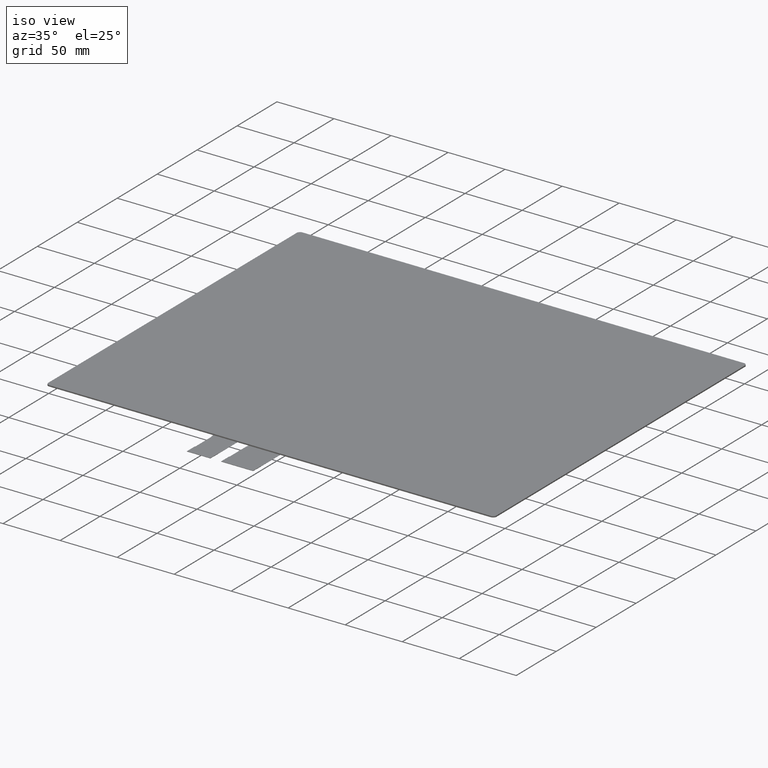
[diagram: clean part render]
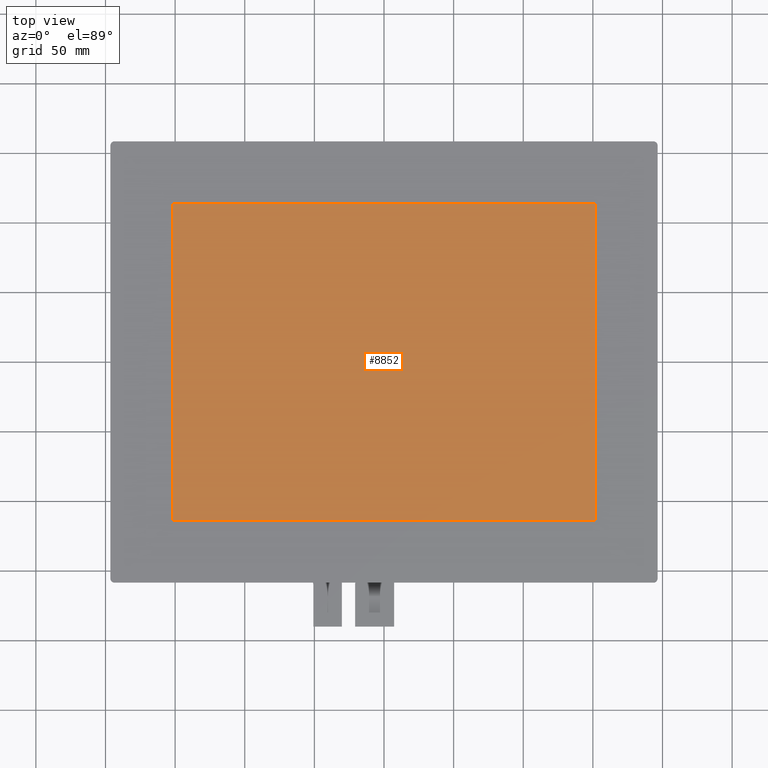
[diagram: tour spotlight — one face highlighted and labeled with its STEP entity id]
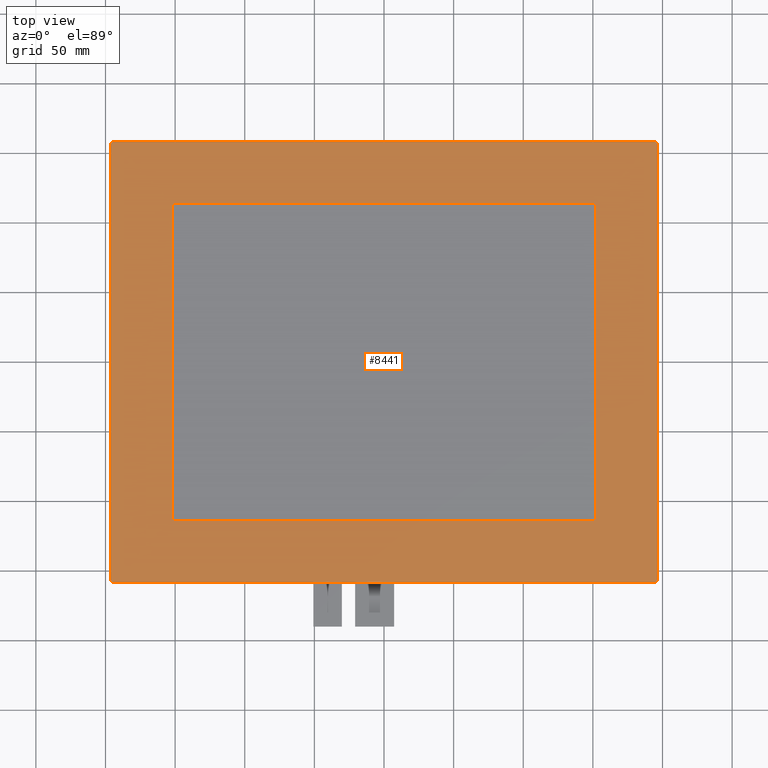
[diagram: tour spotlight — one face highlighted and labeled with its STEP entity id]
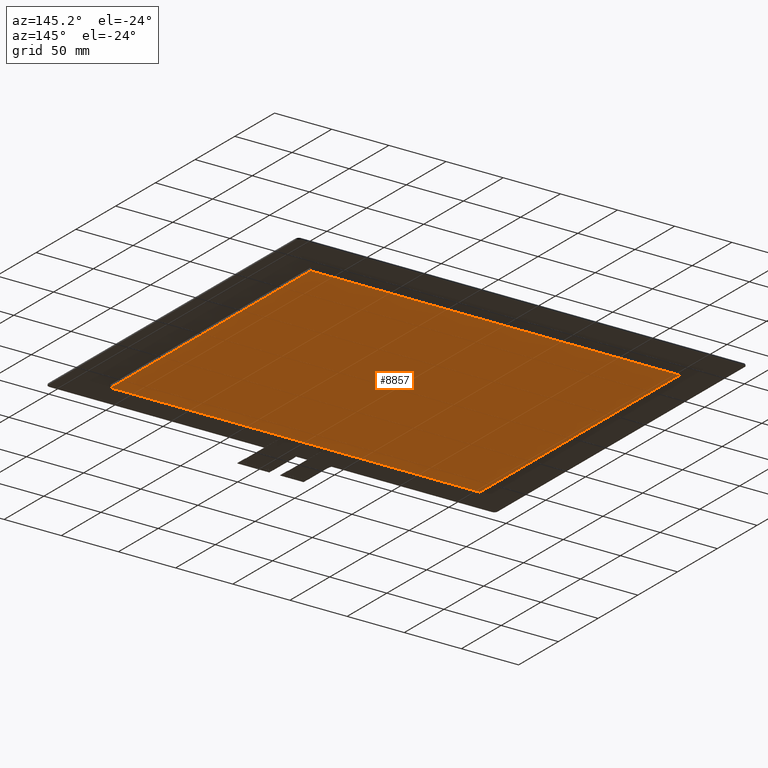
[diagram: tour spotlight — one face highlighted and labeled with its STEP entity id]
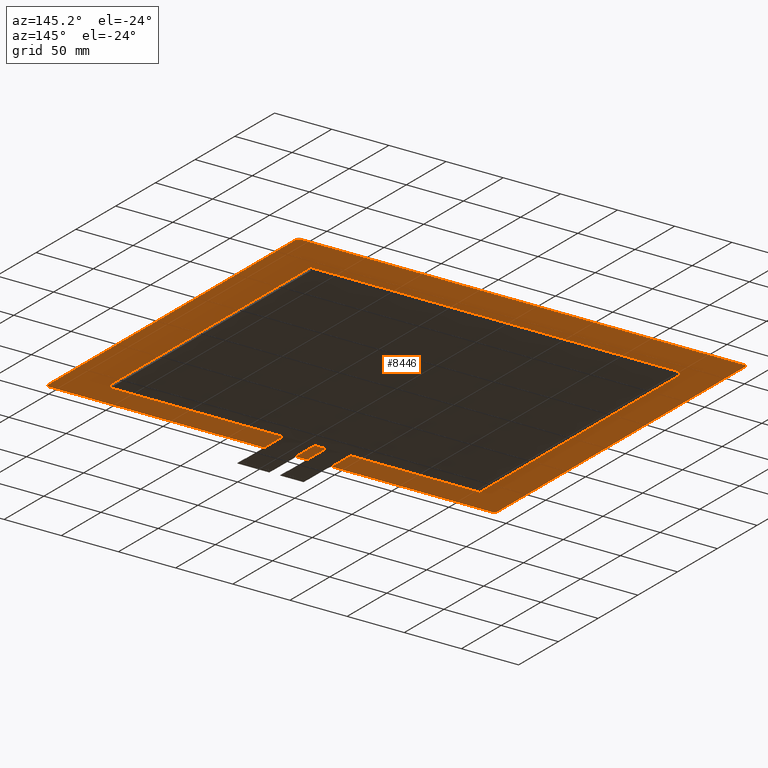
[diagram: tour spotlight — one face highlighted and labeled with its STEP entity id]
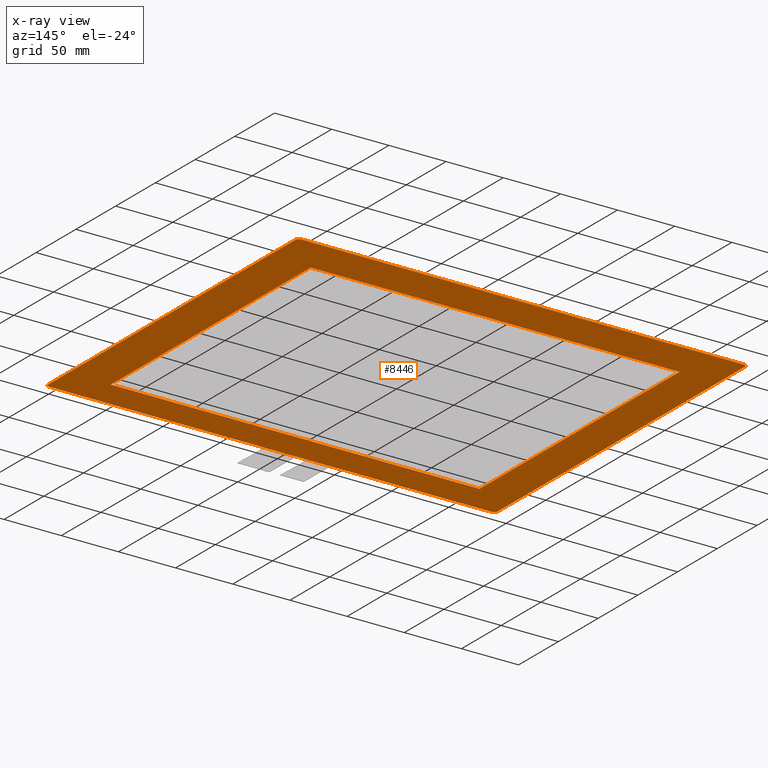
[diagram: x-ray of the same camera — body ghosted, this tour face saturated]
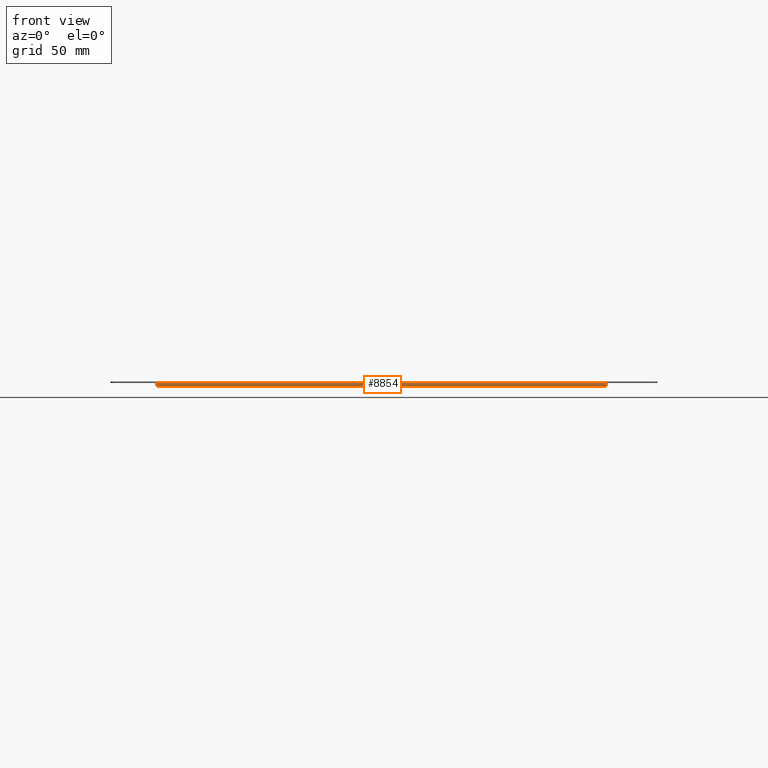
[diagram: tour spotlight — one face highlighted and labeled with its STEP entity id]
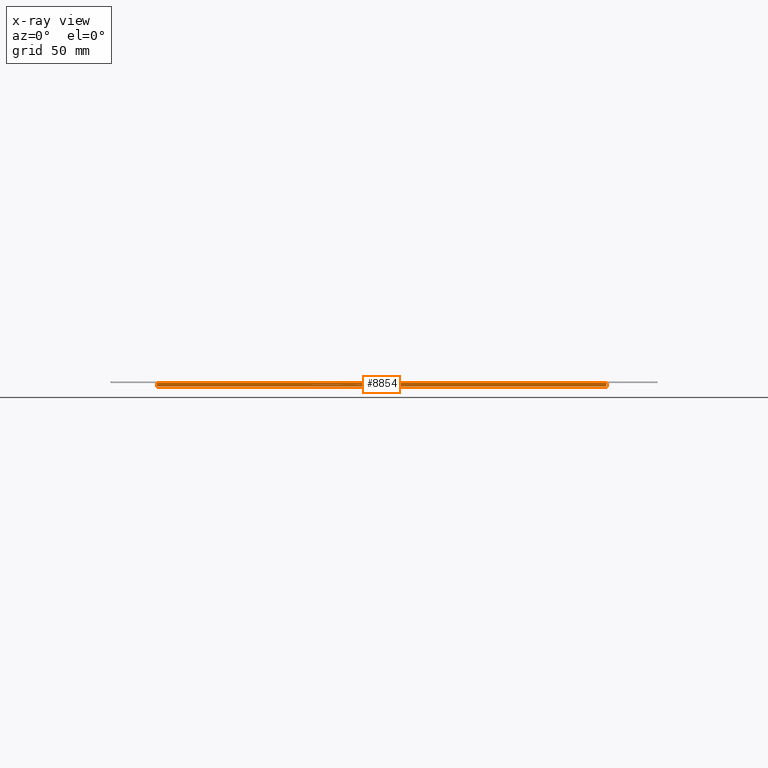
[diagram: x-ray of the same camera — body ghosted, this tour face saturated]
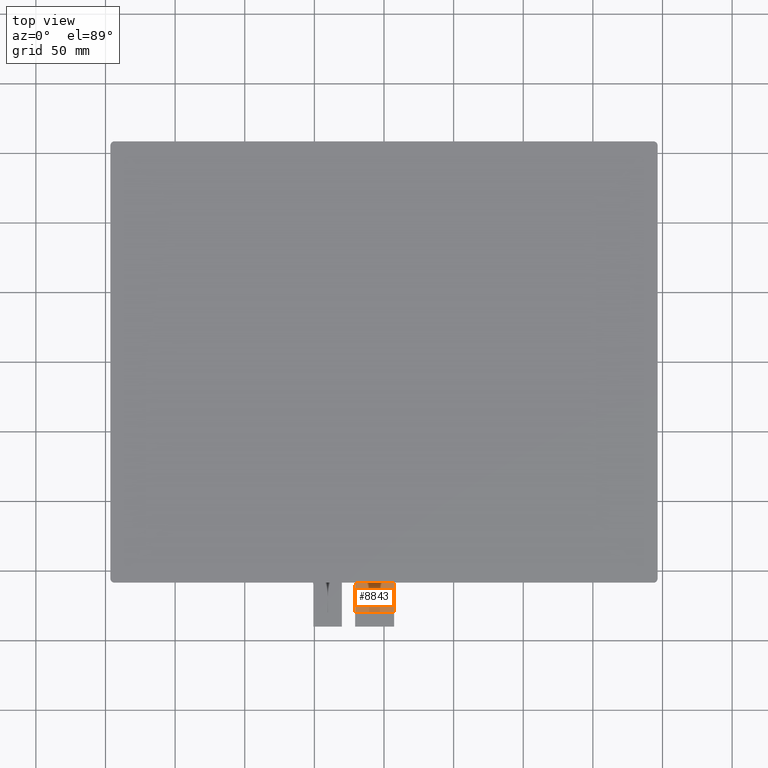
[diagram: tour spotlight — one face highlighted and labeled with its STEP entity id]
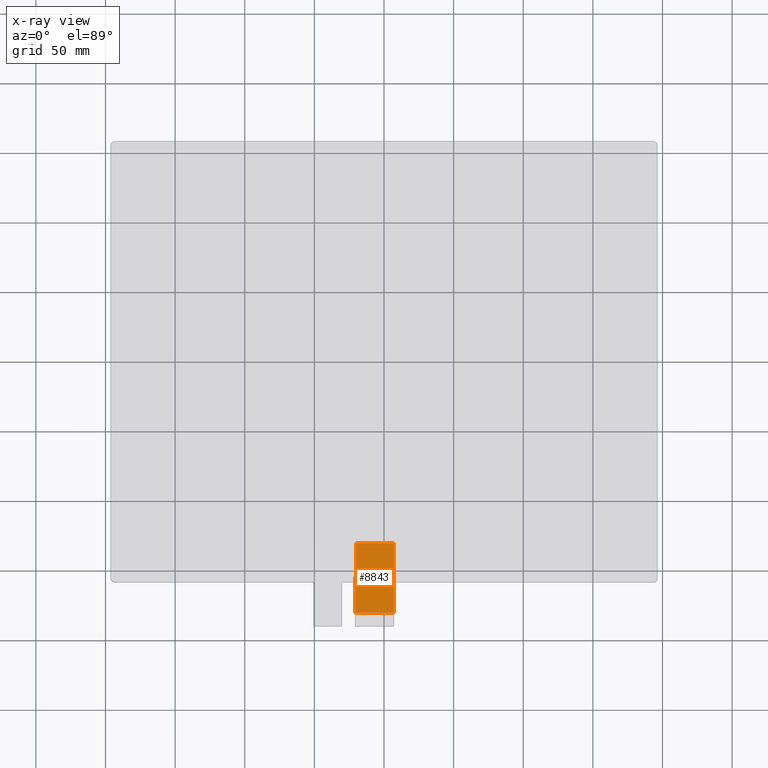
[diagram: x-ray of the same camera — body ghosted, this tour face saturated]
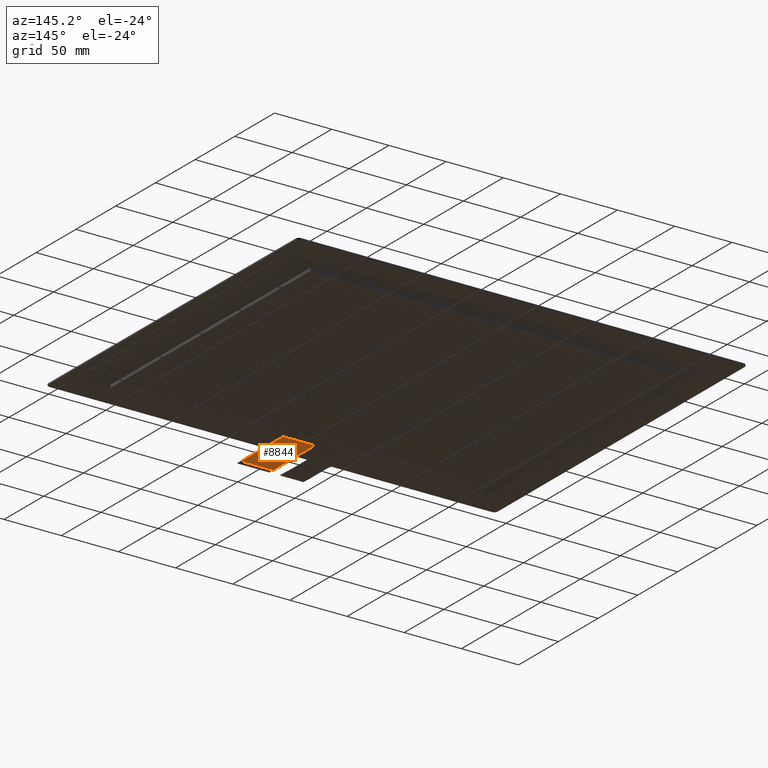
[diagram: tour spotlight — one face highlighted and labeled with its STEP entity id]
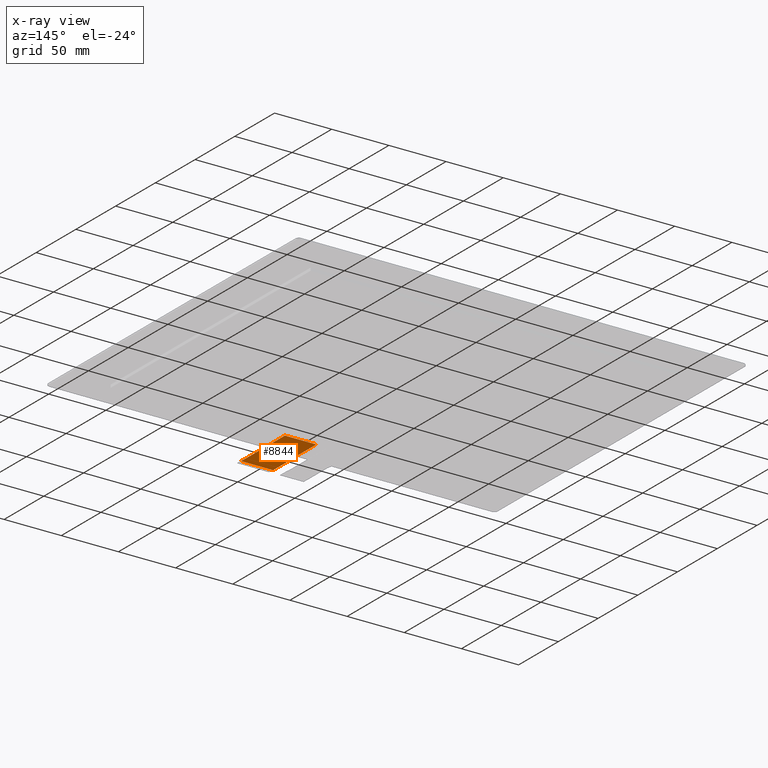
[diagram: x-ray of the same camera — body ghosted, this tour face saturated]
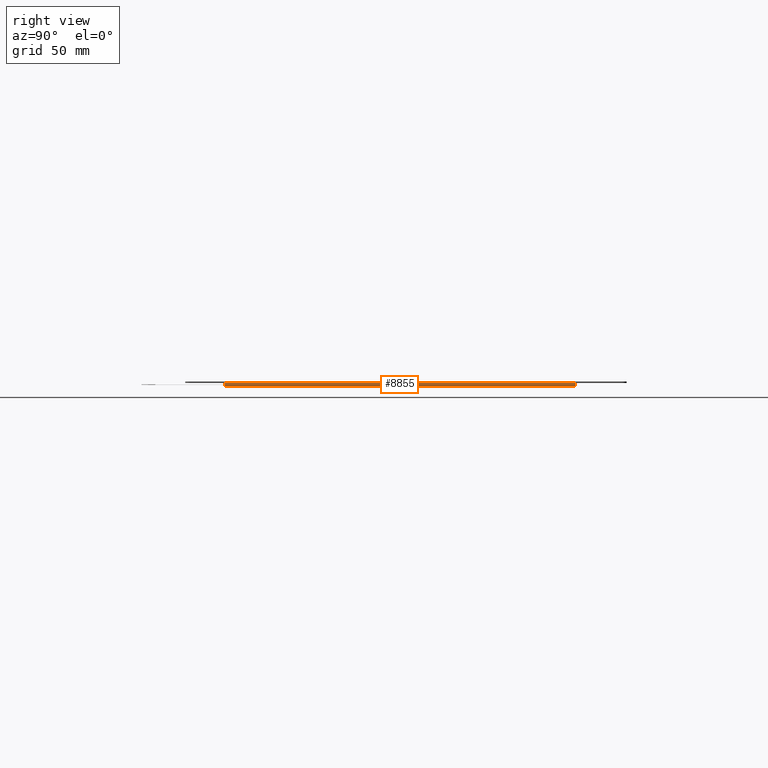
[diagram: tour spotlight — one face highlighted and labeled with its STEP entity id]
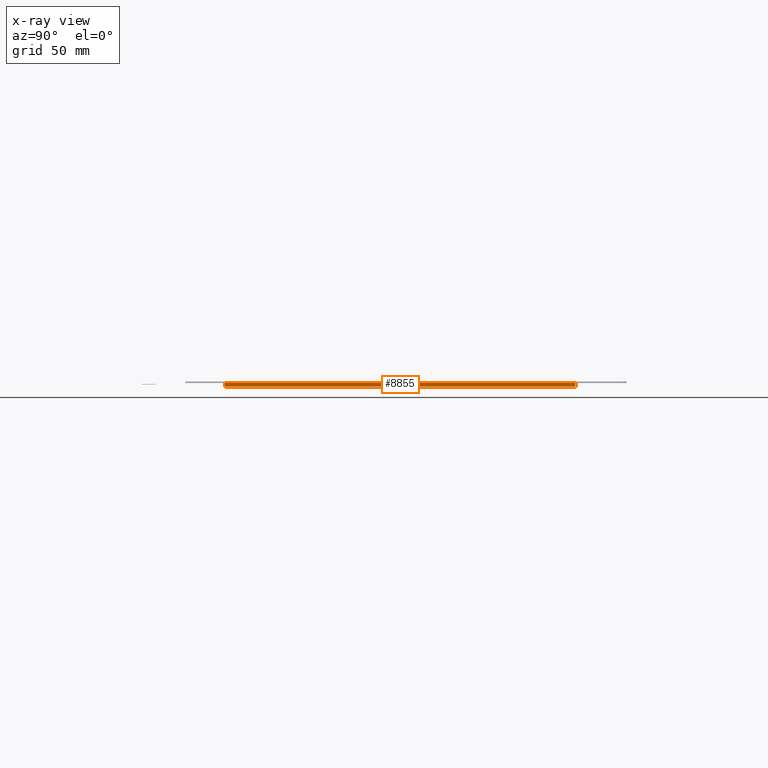
[diagram: x-ray of the same camera — body ghosted, this tour face saturated]
A machine part: a face-by-face anatomy tour. The part has 425 B-rep faces; the first image is the clean iso view, then the 8 largest visible faces are spotlighted one at a time (largest first), each with its STEP entity span.

Face 1 — top view, entity #8852. In plain terms, the highlighted planar face has unit normal (0, 0, 1).
Definition (entity closure, byte-faithful):
#485=FACE_OUTER_BOUND('',#912,.T.);
#912=EDGE_LOOP('',(#7981,#7982,#7983,#7984));
#940=LINE('',#11488,#2185);
#941=LINE('',#11490,#2186);
#942=LINE('',#11492,#2187);
#943=LINE('',#11493,#2188);
#2185=VECTOR('',#9365,10.);
#2186=VECTOR('',#9366,10.);
#2187=VECTOR('',#9367,10.);
#2188=VECTOR('',#9368,10.);
#3429=VERTEX_POINT('',#11486);
#3430=VERTEX_POINT('',#11487);
#3431=VERTEX_POINT('',#11489);
#3432=VERTEX_POINT('',#11491);
#4273=EDGE_CURVE('',#3429,#3430,#940,.T.);
#4274=EDGE_CURVE('',#3431,#3429,#941,.T.);
#4275=EDGE_CURVE('',#3432,#3431,#942,.T.);
#4276=EDGE_CURVE('',#3430,#3432,#943,.T.);
#7981=ORIENTED_EDGE('',*,*,#4273,.T.);
#7982=ORIENTED_EDGE('',*,*,#4276,.T.);
#7983=ORIENTED_EDGE('',*,*,#4275,.T.);
#7984=ORIENTED_EDGE('',*,*,#4274,.T.);
#8427=PLANE('',#9309);
#8852=ADVANCED_FACE('',(#485),#8427,.T.);
#9309=AXIS2_PLACEMENT_3D('',#13933,#11412,#11413);
#9365=DIRECTION('',(0.,1.,0.));
#9366=DIRECTION('',(1.,0.,0.));
#9367=DIRECTION('',(0.,-1.,0.));
#9368=DIRECTION('',(-1.,0.,0.));
#11412=DIRECTION('center_axis',(0.,0.,1.));
#11413=DIRECTION('ref_axis',(1.,0.,0.));
#11486=CARTESIAN_POINT('',(152.1,-114.05,1.1));
#11487=CARTESIAN_POINT('',(152.1,114.05,1.1));
#11488=CARTESIAN_POINT('',(152.1,-57.025,1.1));
#11489=CARTESIAN_POINT('',(-152.1,-114.05,1.1));
#11490=CARTESIAN_POINT('',(-76.05,-114.05,1.1));
#11491=CARTESIAN_POINT('',(-152.1,114.05,1.1));
#11492=CARTESIAN_POINT('',(-152.1,57.025,1.1));
#11493=CARTESIAN_POINT('',(76.05,114.05,1.1));
#13933=CARTESIAN_POINT('Origin',(-3.5527136788005E-14,3.5527136788005E-14,
1.1));

Face 2 — top view, entity #8441. In plain terms, the highlighted planar face has unit normal (0, 0, 1).
Definition (entity closure, byte-faithful):
#30=FACE_BOUND('',#500,.T.);
#50=CIRCLE('',#8887,3.);
#52=CIRCLE('',#8891,3.);
#53=CIRCLE('',#8892,3.);
#54=CIRCLE('',#8893,3.);
#74=FACE_OUTER_BOUND('',#499,.T.);
#499=EDGE_LOOP('',(#5535,#5536,#5537,#5538,#5539,#5540,#5541,#5542));
#500=EDGE_LOOP('',(#5543,#5544,#5545,#5546));
#934=LINE('',#11470,#2179);
#937=LINE('',#11476,#2182);
#938=LINE('',#11480,#2183);
#939=LINE('',#11484,#2184);
#940=LINE('',#11488,#2185);
#941=LINE('',#11490,#2186);
#942=LINE('',#11492,#2187);
#943=LINE('',#11493,#2188);
#2179=VECTOR('',#9351,10.);
#2182=VECTOR('',#9356,10.);
#2183=VECTOR('',#9359,10.);
#2184=VECTOR('',#9362,10.);
#2185=VECTOR('',#9365,10.);
#2186=VECTOR('',#9366,10.);
#2187=VECTOR('',#9367,10.);
#2188=VECTOR('',#9368,10.);
#3418=VERTEX_POINT('',#11460);
#3419=VERTEX_POINT('',#11461);
#3422=VERTEX_POINT('',#11469);
#3424=VERTEX_POINT('',#11475);
#3425=VERTEX_POINT('',#11477);
#3426=VERTEX_POINT('',#11479);
#3427=VERTEX_POINT('',#11481);
#3428=VERTEX_POINT('',#11483);
#3429=VERTEX_POINT('',#11486);
#3430=VERTEX_POINT('',#11487);
#3431=VERTEX_POINT('',#11489);
#3432=VERTEX_POINT('',#11491);
#4260=EDGE_CURVE('',#3418,#3419,#50,.T.);
#4264=EDGE_CURVE('',#3422,#3419,#934,.T.);
#4267=EDGE_CURVE('',#3418,#3424,#937,.T.);
#4268=EDGE_CURVE('',#3425,#3424,#52,.T.);
#4269=EDGE_CURVE('',#3425,#3426,#938,.T.);
#4270=EDGE_CURVE('',#3427,#3426,#53,.T.);
#4271=EDGE_CURVE('',#3427,#3428,#939,.T.);
#4272=EDGE_CURVE('',#3422,#3428,#54,.T.);
#4273=EDGE_CURVE('',#3429,#3430,#940,.T.);
#4274=EDGE_CURVE('',#3431,#3429,#941,.T.);
#4275=EDGE_CURVE('',#3432,#3431,#942,.T.);
#4276=EDGE_CURVE('',#3430,#3432,#943,.T.);
#5535=ORIENTED_EDGE('',*,*,#4260,.F.);
#5536=ORIENTED_EDGE('',*,*,#4267,.T.);
#5537=ORIENTED_EDGE('',*,*,#4268,.F.);
#5538=ORIENTED_EDGE('',*,*,#4269,.T.);
#5539=ORIENTED_EDGE('',*,*,#4270,.F.);
#5540=ORIENTED_EDGE('',*,*,#4271,.T.);
#5541=ORIENTED_EDGE('',*,*,#4272,.F.);
#5542=ORIENTED_EDGE('',*,*,#4264,.T.);
#5543=ORIENTED_EDGE('',*,*,#4273,.F.);
#5544=ORIENTED_EDGE('',*,*,#4274,.F.);
#5545=ORIENTED_EDGE('',*,*,#4275,.F.);
#5546=ORIENTED_EDGE('',*,*,#4276,.F.);
#8020=PLANE('',#8890);
#8441=ADVANCED_FACE('',(#74,#30),#8020,.T.);
#8887=AXIS2_PLACEMENT_3D('',#11462,#9343,#9344);
#8890=AXIS2_PLACEMENT_3D('',#11474,#9354,#9355);
#8891=AXIS2_PLACEMENT_3D('',#11478,#9357,#9358);
#8892=AXIS2_PLACEMENT_3D('',#11482,#9360,#9361);
#8893=AXIS2_PLACEMENT_3D('',#11485,#9363,#9364);
#9343=DIRECTION('center_axis',(0.,0.,-1.));
#9344=DIRECTION('ref_axis',(0.707106781186543,0.707106781186552,0.));
#9351=DIRECTION('',(-1.1207298671295E-16,1.,0.));
#9354=DIRECTION('center_axis',(0.,0.,1.));
#9355=DIRECTION('ref_axis',(1.,0.,0.));
#9356=DIRECTION('',(-1.,4.51999195776145E-17,0.));
#9357=DIRECTION('center_axis',(0.,0.,-1.));
#9358=DIRECTION('ref_axis',(-0.707106781186543,0.707106781186552,0.));
#9359=DIRECTION('',(1.1207298671295E-16,-1.,0.));
#9360=DIRECTION('center_axis',(0.,0.,-1.));
#9361=DIRECTION('ref_axis',(-0.707106781186543,-0.707106781186552,0.));
#9362=DIRECTION('',(1.,1.35599758732844E-16,0.));
#9363=DIRECTION('center_axis',(0.,0.,-1.));
#9364=DIRECTION('ref_axis',(0.707106781186556,-0.707106781186539,0.));
#9365=DIRECTION('',(0.,1.,0.));
#9366=DIRECTION('',(1.,0.,0.));
#9367=DIRECTION('',(0.,-1.,0.));
#9368=DIRECTION('',(-1.,0.,0.));
#11460=CARTESIAN_POINT('',(193.5,158.5,1.1));
#11461=CARTESIAN_POINT('',(196.5,155.5,1.1));
#11462=CARTESIAN_POINT('Origin',(193.5,155.5,1.1));
#11469=CARTESIAN_POINT('',(196.5,-155.5,1.1));
#11470=CARTESIAN_POINT('',(196.5,-158.5,1.1));
#11474=CARTESIAN_POINT('Origin',(-3.5527136788005E-14,3.5527136788005E-14,
1.1));
#11475=CARTESIAN_POINT('',(-193.5,158.5,1.1));
#11476=CARTESIAN_POINT('',(196.5,158.5,1.1));
#11477=CARTESIAN_POINT('',(-196.5,155.5,1.1));
#11478=CARTESIAN_POINT('Origin',(-193.5,155.5,1.1));
#11479=CARTESIAN_POINT('',(-196.5,-155.5,1.1));
#11480=CARTESIAN_POINT('',(-196.5,158.5,1.1));
#11481=CARTESIAN_POINT('',(-193.5,-158.5,1.1));
#11482=CARTESIAN_POINT('Origin',(-193.5,-155.5,1.1));
#11483=CARTESIAN_POINT('',(193.5,-158.5,1.1));
#11484=CARTESIAN_POINT('',(-196.5,-158.5,1.1));
#11485=CARTESIAN_POINT('Origin',(193.5,-155.5,1.1));
#11486=CARTESIAN_POINT('',(152.1,-114.05,1.1));
#11487=CARTESIAN_POINT('',(152.1,114.05,1.1));
#11488=CARTESIAN_POINT('',(152.1,-57.025,1.1));
#11489=CARTESIAN_POINT('',(-152.1,-114.05,1.1));
#11490=CARTESIAN_POINT('',(-76.05,-114.05,1.1));
#11491=CARTESIAN_POINT('',(-152.1,114.05,1.1));
#11492=CARTESIAN_POINT('',(-152.1,57.025,1.1));
#11493=CARTESIAN_POINT('',(76.05,114.05,1.1));

Face 3 — auxiliary view, entity #8857. In plain terms, the highlighted planar face has unit normal (0, 0, -1).
Definition (entity closure, byte-faithful):
#490=FACE_OUTER_BOUND('',#919,.T.);
#919=EDGE_LOOP('',(#8009,#8010,#8011,#8012));
#2158=LINE('',#13938,#3403);
#2160=LINE('',#13942,#3405);
#2162=LINE('',#13946,#3407);
#2164=LINE('',#13949,#3409);
#3403=VECTOR('',#11417,10.);
#3405=VECTOR('',#11421,10.);
#3407=VECTOR('',#11425,10.);
#3409=VECTOR('',#11429,10.);
#4244=VERTEX_POINT('',#13935);
#4245=VERTEX_POINT('',#13937);
#4246=VERTEX_POINT('',#13941);
#4247=VERTEX_POINT('',#13945);
#5496=EDGE_CURVE('',#4245,#4244,#2158,.T.);
#5498=EDGE_CURVE('',#4246,#4245,#2160,.T.);
#5500=EDGE_CURVE('',#4247,#4246,#2162,.T.);
#5502=EDGE_CURVE('',#4244,#4247,#2164,.T.);
#8009=ORIENTED_EDGE('',*,*,#5502,.T.);
#8010=ORIENTED_EDGE('',*,*,#5500,.T.);
#8011=ORIENTED_EDGE('',*,*,#5498,.T.);
#8012=ORIENTED_EDGE('',*,*,#5496,.T.);
#8432=PLANE('',#9314);
#8857=ADVANCED_FACE('',(#490),#8432,.T.);
#9314=AXIS2_PLACEMENT_3D('',#13950,#11430,#11431);
#11417=DIRECTION('',(-2.82297471497855E-16,1.,0.));
#11421=DIRECTION('',(-1.,-1.65037798643566E-16,0.));
#11425=DIRECTION('',(7.05743678744637E-17,-1.,0.));
#11429=DIRECTION('',(1.,0.,0.));
#11430=DIRECTION('center_axis',(0.,0.,-1.));
#11431=DIRECTION('ref_axis',(-1.,0.,0.));
#13935=CARTESIAN_POINT('',(-163.2,121.65,-2.5));
#13937=CARTESIAN_POINT('',(-163.2,-130.05,-2.5));
#13938=CARTESIAN_POINT('',(-163.2,121.65,-2.5));
#13941=CARTESIAN_POINT('',(159.7,-130.05,-2.5));
#13942=CARTESIAN_POINT('',(-163.2,-130.05,-2.5));
#13945=CARTESIAN_POINT('',(159.7,121.65,-2.5));
#13946=CARTESIAN_POINT('',(159.7,-130.05,-2.5));
#13949=CARTESIAN_POINT('',(159.7,121.65,-2.5));
#13950=CARTESIAN_POINT('Origin',(-1.75000000000006,-4.19999999999998,-2.5));

Face 4 — auxiliary view, entity #8446. An x-ray twin of the same camera follows (body ghosted, this face saturated) — the face is partly hidden behind the body. In plain terms, the highlighted planar face has unit normal (0, 0, 1).
Definition (entity closure, byte-faithful):
#31=FACE_BOUND('',#506,.T.);
#51=CIRCLE('',#8888,3.);
#55=CIRCLE('',#8895,3.);
#56=CIRCLE('',#8898,3.);
#57=CIRCLE('',#8900,3.);
#79=FACE_OUTER_BOUND('',#505,.T.);
#505=EDGE_LOOP('',(#5563,#5564,#5565,#5566,#5567,#5568,#5569,#5570));
#506=EDGE_LOOP('',(#5571,#5572,#5573,#5574));
#936=LINE('',#11473,#2181);
#946=LINE('',#11502,#2191);
#950=LINE('',#11513,#2195);
#951=LINE('',#11514,#2196);
#952=LINE('',#11517,#2197);
#953=LINE('',#11519,#2198);
#954=LINE('',#11521,#2199);
#955=LINE('',#11522,#2200);
#2181=VECTOR('',#9353,10.);
#2191=VECTOR('',#9377,10.);
#2195=VECTOR('',#9391,10.);
#2196=VECTOR('',#9392,10.);
#2197=VECTOR('',#9393,10.);
#2198=VECTOR('',#9394,10.);
#2199=VECTOR('',#9395,10.);
#2200=VECTOR('',#9396,10.);
#3420=VERTEX_POINT('',#11463);
#3421=VERTEX_POINT('',#11465);
#3423=VERTEX_POINT('',#11471);
#3433=VERTEX_POINT('',#11495);
#3434=VERTEX_POINT('',#11497);
#3435=VERTEX_POINT('',#11501);
#3436=VERTEX_POINT('',#11505);
#3437=VERTEX_POINT('',#11509);
#3438=VERTEX_POINT('',#11515);
#3439=VERTEX_POINT('',#11516);
#3440=VERTEX_POINT('',#11518);
#3441=VERTEX_POINT('',#11520);
#4262=EDGE_CURVE('',#3420,#3421,#51,.T.);
#4266=EDGE_CURVE('',#3423,#3420,#936,.T.);
#4278=EDGE_CURVE('',#3433,#3434,#55,.T.);
#4280=EDGE_CURVE('',#3434,#3435,#946,.T.);
#4282=EDGE_CURVE('',#3435,#3436,#56,.T.);
#4285=EDGE_CURVE('',#3437,#3423,#57,.T.);
#4286=EDGE_CURVE('',#3436,#3437,#950,.T.);
#4287=EDGE_CURVE('',#3421,#3433,#951,.T.);
#4288=EDGE_CURVE('',#3438,#3439,#952,.T.);
#4289=EDGE_CURVE('',#3439,#3440,#953,.T.);
#4290=EDGE_CURVE('',#3440,#3441,#954,.T.);
#4291=EDGE_CURVE('',#3441,#3438,#955,.T.);
#5563=ORIENTED_EDGE('',*,*,#4262,.F.);
#5564=ORIENTED_EDGE('',*,*,#4266,.F.);
#5565=ORIENTED_EDGE('',*,*,#4285,.F.);
#5566=ORIENTED_EDGE('',*,*,#4286,.F.);
#5567=ORIENTED_EDGE('',*,*,#4282,.F.);
#5568=ORIENTED_EDGE('',*,*,#4280,.F.);
#5569=ORIENTED_EDGE('',*,*,#4278,.F.);
#5570=ORIENTED_EDGE('',*,*,#4287,.F.);
#5571=ORIENTED_EDGE('',*,*,#4288,.T.);
#5572=ORIENTED_EDGE('',*,*,#4289,.T.);
#5573=ORIENTED_EDGE('',*,*,#4290,.T.);
#5574=ORIENTED_EDGE('',*,*,#4291,.T.);
#8022=PLANE('',#8901);
#8446=ADVANCED_FACE('',(#79,#31),#8022,.F.);
#8888=AXIS2_PLACEMENT_3D('',#11466,#9346,#9347);
#8895=AXIS2_PLACEMENT_3D('',#11498,#9372,#9373);
#8898=AXIS2_PLACEMENT_3D('',#11506,#9381,#9382);
#8900=AXIS2_PLACEMENT_3D('',#11511,#9387,#9388);
#8901=AXIS2_PLACEMENT_3D('',#11512,#9389,#9390);
#9346=DIRECTION('center_axis',(0.,0.,1.));
#9347=DIRECTION('ref_axis',(0.707106781186543,0.707106781186552,0.));
#9353=DIRECTION('',(-1.1207298671295E-16,1.,0.));
#9372=DIRECTION('center_axis',(0.,0.,1.));
#9373=DIRECTION('ref_axis',(-0.707106781186543,0.707106781186552,0.));
#9377=DIRECTION('',(1.1207298671295E-16,-1.,0.));
#9381=DIRECTION('center_axis',(0.,0.,1.));
#9382=DIRECTION('ref_axis',(-0.707106781186543,-0.707106781186552,0.));
#9387=DIRECTION('center_axis',(0.,0.,1.));
#9388=DIRECTION('ref_axis',(0.707106781186556,-0.707106781186539,0.));
#9389=DIRECTION('center_axis',(0.,0.,1.));
#9390=DIRECTION('ref_axis',(1.,0.,0.));
#9391=DIRECTION('',(1.,1.35599758732844E-16,0.));
#9392=DIRECTION('',(-1.,4.51999195776145E-17,0.));
#9393=DIRECTION('',(2.82297471497855E-16,-1.,0.));
#9394=DIRECTION('',(1.,1.65037798643566E-16,0.));
#9395=DIRECTION('',(-7.05743678744637E-17,1.,0.));
#9396=DIRECTION('',(-1.,0.,0.));
#11463=CARTESIAN_POINT('',(196.5,155.5,0.));
#11465=CARTESIAN_POINT('',(193.5,158.5,0.));
#11466=CARTESIAN_POINT('Origin',(193.5,155.5,0.));
#11471=CARTESIAN_POINT('',(196.5,-155.5,0.));
#11473=CARTESIAN_POINT('',(196.5,-158.5,0.));
#11495=CARTESIAN_POINT('',(-193.5,158.5,0.));
#11497=CARTESIAN_POINT('',(-196.5,155.5,0.));
#11498=CARTESIAN_POINT('Origin',(-193.5,155.5,0.));
#11501=CARTESIAN_POINT('',(-196.5,-155.5,0.));
#11502=CARTESIAN_POINT('',(-196.5,158.5,0.));
#11505=CARTESIAN_POINT('',(-193.5,-158.5,0.));
#11506=CARTESIAN_POINT('Origin',(-193.5,-155.5,0.));
#11509=CARTESIAN_POINT('',(193.5,-158.5,0.));
#11511=CARTESIAN_POINT('Origin',(193.5,-155.5,0.));
#11512=CARTESIAN_POINT('Origin',(-5.32907051820075E-14,3.5527136788005E-14,
0.));
#11513=CARTESIAN_POINT('',(-196.5,-158.5,0.));
#11514=CARTESIAN_POINT('',(196.5,158.5,0.));
#11515=CARTESIAN_POINT('',(-163.2,121.65,0.));
#11516=CARTESIAN_POINT('',(-163.2,-130.05,0.));
#11517=CARTESIAN_POINT('',(-163.2,121.65,0.));
#11518=CARTESIAN_POINT('',(159.7,-130.05,0.));
#11519=CARTESIAN_POINT('',(-163.2,-130.05,0.));
#11520=CARTESIAN_POINT('',(159.7,121.65,0.));
#11521=CARTESIAN_POINT('',(159.7,-130.05,0.));
#11522=CARTESIAN_POINT('',(159.7,121.65,0.));

Face 5 — front view, entity #8854. An x-ray twin of the same camera follows (body ghosted, this face saturated) — the face is partly hidden behind the body. In plain terms, the highlighted planar face has unit normal (0, -1, 0).
Definition (entity closure, byte-faithful):
#32=FACE_BOUND('',#915,.T.);
#33=FACE_BOUND('',#916,.T.);
#487=FACE_OUTER_BOUND('',#914,.T.);
#914=EDGE_LOOP('',(#7989,#7990,#7991,#7992));
#915=EDGE_LOOP('',(#7993,#7994,#7995,#7996));
#916=EDGE_LOOP('',(#7997,#7998,#7999,#8000));
#953=LINE('',#11519,#2198);
#961=LINE('',#11540,#2206);
#2139=LINE('',#13898,#3384);
#2144=LINE('',#13906,#3389);
#2145=LINE('',#13908,#3390);
#2147=LINE('',#13913,#3392);
#2150=LINE('',#13920,#3395);
#2155=LINE('',#13928,#3400);
#2156=LINE('',#13930,#3401);
#2159=LINE('',#13939,#3404);
#2160=LINE('',#13942,#3405);
#2161=LINE('',#13943,#3406);
#2198=VECTOR('',#9394,10.);
#2206=VECTOR('',#9410,10.);
#3384=VECTOR('',#11374,10.);
#3389=VECTOR('',#11383,10.);
#3390=VECTOR('',#11386,10.);
#3392=VECTOR('',#11390,10.);
#3395=VECTOR('',#11395,10.);
#3400=VECTOR('',#11404,10.);
#3401=VECTOR('',#11407,10.);
#3404=VECTOR('',#11418,10.);
#3405=VECTOR('',#11421,10.);
#3406=VECTOR('',#11422,10.);
#3439=VERTEX_POINT('',#11516);
#3440=VERTEX_POINT('',#11518);
#3448=VERTEX_POINT('',#11537);
#3449=VERTEX_POINT('',#11539);
#4234=VERTEX_POINT('',#13894);
#4236=VERTEX_POINT('',#13897);
#4238=VERTEX_POINT('',#13910);
#4239=VERTEX_POINT('',#13912);
#4240=VERTEX_POINT('',#13916);
#4242=VERTEX_POINT('',#13919);
#4245=VERTEX_POINT('',#13937);
#4246=VERTEX_POINT('',#13941);
#4289=EDGE_CURVE('',#3439,#3440,#953,.T.);
#4299=EDGE_CURVE('',#3449,#3448,#961,.T.);
#5477=EDGE_CURVE('',#4236,#4234,#2139,.T.);
#5482=EDGE_CURVE('',#4234,#3449,#2144,.T.);
#5483=EDGE_CURVE('',#3448,#4236,#2145,.T.);
#5485=EDGE_CURVE('',#4239,#4238,#2147,.T.);
#5488=EDGE_CURVE('',#4242,#4240,#2150,.T.);
#5493=EDGE_CURVE('',#4240,#4239,#2155,.T.);
#5494=EDGE_CURVE('',#4238,#4242,#2156,.T.);
#5497=EDGE_CURVE('',#3439,#4245,#2159,.T.);
#5498=EDGE_CURVE('',#4246,#4245,#2160,.T.);
#5499=EDGE_CURVE('',#3440,#4246,#2161,.T.);
#7989=ORIENTED_EDGE('',*,*,#4289,.F.);
#7990=ORIENTED_EDGE('',*,*,#5497,.T.);
#7991=ORIENTED_EDGE('',*,*,#5498,.F.);
#7992=ORIENTED_EDGE('',*,*,#5499,.F.);
#7993=ORIENTED_EDGE('',*,*,#5477,.T.);
#7994=ORIENTED_EDGE('',*,*,#5482,.T.);
#7995=ORIENTED_EDGE('',*,*,#4299,.T.);
#7996=ORIENTED_EDGE('',*,*,#5483,.T.);
#7997=ORIENTED_EDGE('',*,*,#5488,.T.);
#7998=ORIENTED_EDGE('',*,*,#5493,.T.);
#7999=ORIENTED_EDGE('',*,*,#5485,.T.);
#8000=ORIENTED_EDGE('',*,*,#5494,.T.);
#8429=PLANE('',#9311);
#8854=ADVANCED_FACE('',(#487,#32,#33),#8429,.T.);
#9311=AXIS2_PLACEMENT_3D('',#13940,#11419,#11420);
#9394=DIRECTION('',(1.,1.65037798643566E-16,0.));
#9410=DIRECTION('',(0.,0.,-1.));
#11374=DIRECTION('',(0.,0.,1.));
#11383=DIRECTION('',(1.,1.65037798643566E-16,0.));
#11386=DIRECTION('',(-1.,-1.65037798643566E-16,0.));
#11390=DIRECTION('',(0.,0.,-1.));
#11395=DIRECTION('',(0.,0.,1.));
#11404=DIRECTION('',(1.,1.65037798643566E-16,0.));
#11407=DIRECTION('',(-1.,-1.65037798643566E-16,0.));
#11418=DIRECTION('',(0.,0.,-1.));
#11419=DIRECTION('center_axis',(1.65037798643566E-16,-1.,0.));
#11420=DIRECTION('ref_axis',(-1.,-1.65037798643566E-16,0.));
#11421=DIRECTION('',(-1.,-1.65037798643566E-16,0.));
#11422=DIRECTION('',(0.,0.,-1.));
#11516=CARTESIAN_POINT('',(-163.2,-130.05,0.));
#11518=CARTESIAN_POINT('',(159.7,-130.05,0.));
#11519=CARTESIAN_POINT('',(-163.2,-130.05,0.));
#11537=CARTESIAN_POINT('',(7.24999999999998,-130.05,-1.35));
#11539=CARTESIAN_POINT('',(7.24999999999998,-130.05,-1.25));
#11540=CARTESIAN_POINT('',(7.24999999999998,-130.05,-0.625));
#13894=CARTESIAN_POINT('',(-20.25,-130.05,-1.25));
#13897=CARTESIAN_POINT('',(-20.25,-130.05,-1.35));
#13898=CARTESIAN_POINT('',(-20.25,-130.05,-0.625));
#13906=CARTESIAN_POINT('',(76.475,-130.05,-1.25));
#13908=CARTESIAN_POINT('',(76.475,-130.05,-1.35));
#13910=CARTESIAN_POINT('',(-30.25,-130.05,-1.35));
#13912=CARTESIAN_POINT('',(-30.25,-130.05,-1.25));
#13913=CARTESIAN_POINT('',(-30.25,-130.05,-0.625));
#13916=CARTESIAN_POINT('',(-51.75,-130.05,-1.25));
#13919=CARTESIAN_POINT('',(-51.75,-130.05,-1.35));
#13920=CARTESIAN_POINT('',(-51.75,-130.05,-0.625));
#13928=CARTESIAN_POINT('',(59.35,-130.05,-1.25));
#13930=CARTESIAN_POINT('',(59.35,-130.05,-1.35));
#13937=CARTESIAN_POINT('',(-163.2,-130.05,-2.5));
#13939=CARTESIAN_POINT('',(-163.2,-130.05,0.));
#13940=CARTESIAN_POINT('Origin',(159.7,-130.05,0.));
#13941=CARTESIAN_POINT('',(159.7,-130.05,-2.5));
#13942=CARTESIAN_POINT('',(-163.2,-130.05,-2.5));
#13943=CARTESIAN_POINT('',(159.7,-130.05,0.));

Face 6 — top view, entity #8843. An x-ray twin of the same camera follows (body ghosted, this face saturated) — the face is partly hidden behind the body. In plain terms, the highlighted planar face has unit normal (0, 0, 1).
Definition (entity closure, byte-faithful):
#476=FACE_OUTER_BOUND('',#903,.T.);
#903=EDGE_LOOP('',(#7933,#7934,#7935,#7936,#7937,#7938));
#962=LINE('',#11542,#2207);
#2128=LINE('',#13875,#3373);
#2132=LINE('',#13882,#3377);
#2138=LINE('',#13896,#3383);
#2142=LINE('',#13903,#3387);
#2144=LINE('',#13906,#3389);
#2207=VECTOR('',#9411,10.);
#3373=VECTOR('',#11351,10.);
#3377=VECTOR('',#11359,10.);
#3383=VECTOR('',#11373,10.);
#3387=VECTOR('',#11379,10.);
#3389=VECTOR('',#11383,10.);
#3449=VERTEX_POINT('',#11539);
#3450=VERTEX_POINT('',#11541);
#4229=VERTEX_POINT('',#13872);
#4230=VERTEX_POINT('',#13874);
#4234=VERTEX_POINT('',#13894);
#4235=VERTEX_POINT('',#13895);
#4300=EDGE_CURVE('',#3450,#3449,#962,.T.);
#5466=EDGE_CURVE('',#4230,#4229,#2128,.T.);
#5470=EDGE_CURVE('',#4229,#3450,#2132,.T.);
#5476=EDGE_CURVE('',#4234,#4235,#2138,.T.);
#5480=EDGE_CURVE('',#4235,#4230,#2142,.T.);
#5482=EDGE_CURVE('',#4234,#3449,#2144,.T.);
#7933=ORIENTED_EDGE('',*,*,#5470,.T.);
#7934=ORIENTED_EDGE('',*,*,#4300,.T.);
#7935=ORIENTED_EDGE('',*,*,#5482,.F.);
#7936=ORIENTED_EDGE('',*,*,#5476,.T.);
#7937=ORIENTED_EDGE('',*,*,#5480,.T.);
#7938=ORIENTED_EDGE('',*,*,#5466,.T.);
#8418=PLANE('',#9300);
#8843=ADVANCED_FACE('',(#476),#8418,.T.);
#9300=AXIS2_PLACEMENT_3D('',#13905,#11381,#11382);
#9411=DIRECTION('',(3.70074341541719E-17,1.,0.));
#11351=DIRECTION('',(4.4114822170536E-16,-1.,0.));
#11359=DIRECTION('',(1.,0.,0.));
#11373=DIRECTION('',(1.85037170770859E-16,-1.,0.));
#11379=DIRECTION('',(-0.0858883421530155,-0.996304768974939,0.));
#11381=DIRECTION('center_axis',(0.,0.,1.));
#11382=DIRECTION('ref_axis',(1.,0.,0.));
#11383=DIRECTION('',(1.,1.65037798643566E-16,0.));
#11539=CARTESIAN_POINT('',(7.24999999999998,-130.05,-1.25));
#11541=CARTESIAN_POINT('',(7.24999999999998,-180.05,-1.25));
#11542=CARTESIAN_POINT('',(7.24999999999998,-190.05,-1.25));
#13872=CARTESIAN_POINT('',(-20.75,-180.05,-1.25));
#13874=CARTESIAN_POINT('',(-20.75,-159.85,-1.25));
#13875=CARTESIAN_POINT('',(-20.75,-159.85,-1.25));
#13882=CARTESIAN_POINT('',(0.249999999999975,-180.05,-1.25));
#13894=CARTESIAN_POINT('',(-20.25,-130.05,-1.25));
#13895=CARTESIAN_POINT('',(-20.25,-154.05,-1.25));
#13896=CARTESIAN_POINT('',(-20.25,-130.05,-1.25));
#13903=CARTESIAN_POINT('',(-20.25,-154.05,-1.25));
#13905=CARTESIAN_POINT('Origin',(-6.75000000000003,-160.05,-1.25));
#13906=CARTESIAN_POINT('',(76.475,-130.05,-1.25));

Face 7 — auxiliary view, entity #8844. An x-ray twin of the same camera follows (body ghosted, this face saturated) — the face is partly hidden behind the body. In plain terms, the highlighted planar face has unit normal (0, 0, -1).
Definition (entity closure, byte-faithful):
#477=FACE_OUTER_BOUND('',#904,.T.);
#904=EDGE_LOOP('',(#7939,#7940,#7941,#7942,#7943,#7944));
#960=LINE('',#11538,#2205);
#2114=LINE('',#13846,#3359);
#2130=LINE('',#13878,#3375);
#2140=LINE('',#13900,#3385);
#2143=LINE('',#13904,#3388);
#2145=LINE('',#13908,#3390);
#2205=VECTOR('',#9409,10.);
#3359=VECTOR('',#11329,10.);
#3375=VECTOR('',#11353,10.);
#3385=VECTOR('',#11375,10.);
#3388=VECTOR('',#11380,10.);
#3390=VECTOR('',#11386,10.);
#3447=VERTEX_POINT('',#11535);
#3448=VERTEX_POINT('',#11537);
#4219=VERTEX_POINT('',#13844);
#4231=VERTEX_POINT('',#13876);
#4236=VERTEX_POINT('',#13897);
#4237=VERTEX_POINT('',#13899);
#4298=EDGE_CURVE('',#3448,#3447,#960,.T.);
#5452=EDGE_CURVE('',#3447,#4219,#2114,.T.);
#5468=EDGE_CURVE('',#4219,#4231,#2130,.T.);
#5478=EDGE_CURVE('',#4237,#4236,#2140,.T.);
#5481=EDGE_CURVE('',#4231,#4237,#2143,.T.);
#5483=EDGE_CURVE('',#3448,#4236,#2145,.T.);
#7939=ORIENTED_EDGE('',*,*,#5452,.T.);
#7940=ORIENTED_EDGE('',*,*,#5468,.T.);
#7941=ORIENTED_EDGE('',*,*,#5481,.T.);
#7942=ORIENTED_EDGE('',*,*,#5478,.T.);
#7943=ORIENTED_EDGE('',*,*,#5483,.F.);
#7944=ORIENTED_EDGE('',*,*,#4298,.T.);
#8419=PLANE('',#9301);
#8844=ADVANCED_FACE('',(#477),#8419,.T.);
#9301=AXIS2_PLACEMENT_3D('',#13907,#11384,#11385);
#9409=DIRECTION('',(-3.70074341541719E-17,-1.,0.));
#11329=DIRECTION('',(-1.,0.,0.));
#11353=DIRECTION('',(-4.4114822170536E-16,1.,0.));
#11375=DIRECTION('',(-1.85037170770859E-16,1.,0.));
#11380=DIRECTION('',(0.0858883421530155,0.996304768974939,0.));
#11384=DIRECTION('center_axis',(0.,0.,-1.));
#11385=DIRECTION('ref_axis',(-1.,0.,0.));
#11386=DIRECTION('',(-1.,-1.65037798643566E-16,0.));
#11535=CARTESIAN_POINT('',(7.24999999999998,-185.05,-1.35));
#11537=CARTESIAN_POINT('',(7.24999999999998,-130.05,-1.35));
#11538=CARTESIAN_POINT('',(7.24999999999998,-190.05,-1.35));
#13844=CARTESIAN_POINT('',(-20.75,-185.05,-1.35));
#13846=CARTESIAN_POINT('',(0.249999999999977,-185.05,-1.35));
#13876=CARTESIAN_POINT('',(-20.75,-159.85,-1.35));
#13878=CARTESIAN_POINT('',(-20.75,-159.85,-1.35));
#13897=CARTESIAN_POINT('',(-20.25,-130.05,-1.35));
#13899=CARTESIAN_POINT('',(-20.25,-154.05,-1.35));
#13900=CARTESIAN_POINT('',(-20.25,-130.05,-1.35));
#13904=CARTESIAN_POINT('',(-20.25,-154.05,-1.35));
#13907=CARTESIAN_POINT('Origin',(-6.75000000000003,-160.05,-1.35));
#13908=CARTESIAN_POINT('',(76.475,-130.05,-1.35));

Face 8 — right view, entity #8855. An x-ray twin of the same camera follows (body ghosted, this face saturated) — the face is partly hidden behind the body. In plain terms, the highlighted planar face has unit normal (1, 0, 0).
Definition (entity closure, byte-faithful):
#488=FACE_OUTER_BOUND('',#917,.T.);
#917=EDGE_LOOP('',(#8001,#8002,#8003,#8004));
#954=LINE('',#11521,#2199);
#2161=LINE('',#13943,#3406);
#2162=LINE('',#13946,#3407);
#2163=LINE('',#13947,#3408);
#2199=VECTOR('',#9395,10.);
#3406=VECTOR('',#11422,10.);
#3407=VECTOR('',#11425,10.);
#3408=VECTOR('',#11426,10.);
#3440=VERTEX_POINT('',#11518);
#3441=VERTEX_POINT('',#11520);
#4246=VERTEX_POINT('',#13941);
#4247=VERTEX_POINT('',#13945);
#4290=EDGE_CURVE('',#3440,#3441,#954,.T.);
#5499=EDGE_CURVE('',#3440,#4246,#2161,.T.);
#5500=EDGE_CURVE('',#4247,#4246,#2162,.T.);
#5501=EDGE_CURVE('',#3441,#4247,#2163,.T.);
#8001=ORIENTED_EDGE('',*,*,#4290,.F.);
#8002=ORIENTED_EDGE('',*,*,#5499,.T.);
#8003=ORIENTED_EDGE('',*,*,#5500,.F.);
#8004=ORIENTED_EDGE('',*,*,#5501,.F.);
#8430=PLANE('',#9312);
#8855=ADVANCED_FACE('',(#488),#8430,.T.);
#9312=AXIS2_PLACEMENT_3D('',#13944,#11423,#11424);
#9395=DIRECTION('',(-7.05743678744637E-17,1.,0.));
#11422=DIRECTION('',(0.,0.,-1.));
#11423=DIRECTION('center_axis',(1.,7.05743678744637E-17,0.));
#11424=DIRECTION('ref_axis',(7.05743678744637E-17,-1.,0.));
#11425=DIRECTION('',(7.05743678744637E-17,-1.,0.));
#11426=DIRECTION('',(0.,0.,-1.));
#11518=CARTESIAN_POINT('',(159.7,-130.05,0.));
#11520=CARTESIAN_POINT('',(159.7,121.65,0.));
#11521=CARTESIAN_POINT('',(159.7,-130.05,0.));
#13941=CARTESIAN_POINT('',(159.7,-130.05,-2.5));
#13943=CARTESIAN_POINT('',(159.7,-130.05,0.));
#13944=CARTESIAN_POINT('Origin',(159.7,121.65,0.));
#13945=CARTESIAN_POINT('',(159.7,121.65,-2.5));
#13946=CARTESIAN_POINT('',(159.7,-130.05,-2.5));
#13947=CARTESIAN_POINT('',(159.7,121.65,0.));